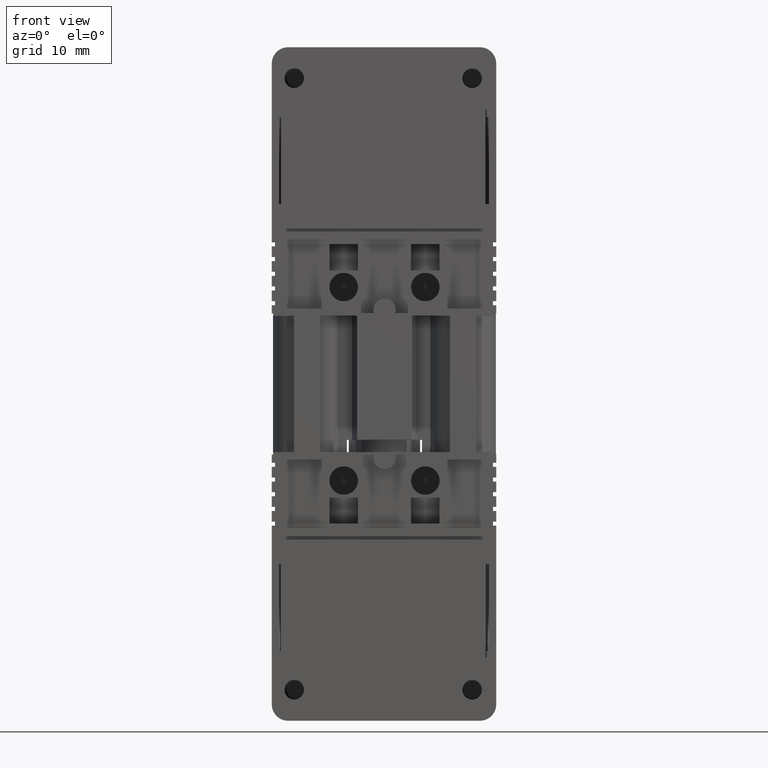
[diagram: clean part render]
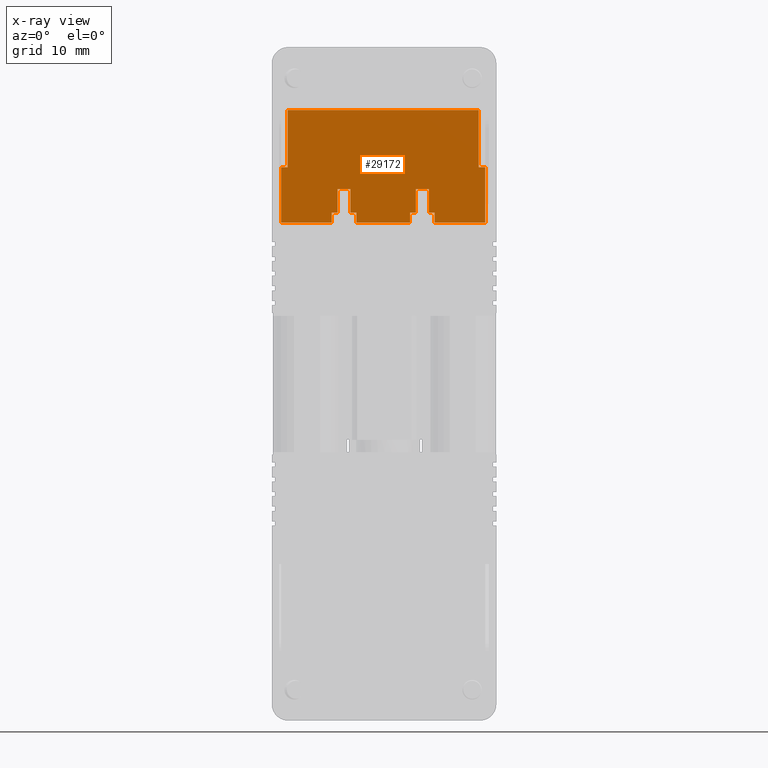
[diagram: x-ray — body ghosted, one internal face saturated and labeled with its STEP entity id]
A machine part, front view, then the same camera in x-ray: the body is ghosted and one INTERNAL B-rep face — a face not visible from any outside direction — is saturated and labeled: STEP entity #29172.
In plain terms, the highlighted planar face has unit normal (0, -1, 0).
Its self-contained STEP definition (entity closure, byte-faithful):
#343 = LINE ( 'NONE', #365, #14206 ) ;
#364 = LINE ( 'NONE', #398, #14260 ) ;
#365 = CARTESIAN_POINT ( 'NONE',  ( 27.15000000000096100, -8.699999999999999300, 42.49999999999995700 ) ) ;
#368 = DIRECTION ( 'NONE',  ( -1.000000000000000000, -0.0000000000000000000, -0.0000000000000000000 ) ) ;
#382 = LINE ( 'NONE', #394, #14238 ) ;
#386 = DIRECTION ( 'NONE',  ( 0.0000000000000000000, -0.0000000000000000000, -1.000000000000000000 ) ) ;
#392 = CARTESIAN_POINT ( 'NONE',  ( 27.15000000000096100, -8.699999999999999300, 28.73184119384915600 ) ) ;
#393 = DIRECTION ( 'NONE',  ( 1.000000000000000000, 0.0000000000000000000, 0.0000000000000000000 ) ) ;
#394 = CARTESIAN_POINT ( 'NONE',  ( 19.24500000000076800, -8.699999999999999300, 28.00000000000005300 ) ) ;
#398 = CARTESIAN_POINT ( 'NONE',  ( 27.15000000000096100, -8.699999999999999300, 32.80873420447297000 ) ) ;
#400 = LINE ( 'NONE', #410, #14301 ) ;
#410 = CARTESIAN_POINT ( 'NONE',  ( 25.35000000000049900, -8.699999999999999300, 28.00000000000005300 ) ) ;
#412 = LINE ( 'NONE', #426, #14306 ) ;
#413 = DIRECTION ( 'NONE',  ( 1.000000000000000000, 0.0000000000000000000, 0.0000000000000000000 ) ) ;
#414 = DIRECTION ( 'NONE',  ( 0.0000000000000000000, -0.0000000000000000000, -1.000000000000000000 ) ) ;
#425 = DIRECTION ( 'NONE',  ( -0.0000000000000000000, 0.0000000000000000000, 1.000000000000000000 ) ) ;
#426 = CARTESIAN_POINT ( 'NONE',  ( 19.94464615384706000, -8.699999999999999300, 28.00000000000005300 ) ) ;
#429 = LINE ( 'NONE', #392, #14280 ) ;
#450 = CARTESIAN_POINT ( 'NONE',  ( 27.15000000000096100, -8.699999999999999300, 32.80873420447235800 ) ) ;
#452 = LINE ( 'NONE', #496, #14298 ) ;
#453 = LINE ( 'NONE', #506, #14268 ) ;
#463 = LINE ( 'NONE', #450, #14271 ) ;
#467 = DIRECTION ( 'NONE',  ( 1.000000000000000000, 0.0000000000000000000, 0.0000000000000000000 ) ) ;
#480 = DIRECTION ( 'NONE',  ( 1.000000000000000000, 0.0000000000000000000, 0.0000000000000000000 ) ) ;
#496 = CARTESIAN_POINT ( 'NONE',  ( 27.15000000000096100, -8.699999999999999300, 29.95999999999955700 ) ) ;
#506 = CARTESIAN_POINT ( 'NONE',  ( 27.15000000000096100, -8.699999999999999300, 28.73184119384929100 ) ) ;
#522 = DIRECTION ( 'NONE',  ( 1.000000000000000000, 0.0000000000000000000, 0.0000000000000000000 ) ) ;
#529 = CARTESIAN_POINT ( 'NONE',  ( 10.34464615384715300, -8.699999999999999300, 28.00000000000005300 ) ) ;
#542 = DIRECTION ( 'NONE',  ( 0.0000000000000000000, -0.0000000000000000000, -1.000000000000000000 ) ) ;
#547 = DIRECTION ( 'NONE',  ( 1.000000000000000000, 0.0000000000000000000, 0.0000000000000000000 ) ) ;
#561 = LINE ( 'NONE', #562, #14325 ) ;
#562 = CARTESIAN_POINT ( 'NONE',  ( 27.15000000000096100, -8.699999999999999300, 28.73184119384868000 ) ) ;
#566 = LINE ( 'NONE', #529, #14318 ) ;
#4582 = EDGE_CURVE ( 'NONE', #26839, #26735, #23285, .T. ) ;
#4637 = EDGE_CURVE ( 'NONE', #26839, #26730, #23898, .T. ) ;
#4641 = EDGE_CURVE ( 'NONE', #26724, #26799, #23881, .T. ) ;
#5533 = EDGE_CURVE ( 'NONE', #26740, #26777, #343, .T. ) ;
#5537 = EDGE_CURVE ( 'NONE', #26754, #26707, #382, .T. ) ;
#5538 = EDGE_CURVE ( 'NONE', #26755, #26754, #364, .T. ) ;
#5540 = EDGE_CURVE ( 'NONE', #26730, #26740, #400, .T. ) ;
#5543 = EDGE_CURVE ( 'NONE', #26724, #26746, #429, .T. ) ;
#5544 = EDGE_CURVE ( 'NONE', #26758, #26716, #412, .T. ) ;
#5561 = EDGE_CURVE ( 'NONE', #26772, #26774, #463, .T. ) ;
#5569 = EDGE_CURVE ( 'NONE', #26707, #26758, #452, .T. ) ;
#5576 = EDGE_CURVE ( 'NONE', #26716, #26735, #453, .T. ) ;
#5591 = EDGE_CURVE ( 'NONE', #26717, #26731, #566, .T. ) ;
#5594 = EDGE_CURVE ( 'NONE', #26731, #26728, #561, .T. ) ;
#5947 = EDGE_LOOP ( 'NONE', ( #22417, #22433, #22412, #22438, #22436, #22447, #22420, #22423, #22427, #22448, #22418, #22422, #22404, #22477, #22485, #22467, #22441, #22442, #22474, #22497, #22483, #22450, #22481, #22402 ) ) ;
#8928 = VECTOR ( 'NONE', #23332, 1000.000000000000000 ) ;
#8960 = VECTOR ( 'NONE', #23922, 1000.000000000000000 ) ;
#8997 = VECTOR ( 'NONE', #23934, 1000.000000000000000 ) ;
#10889 = CARTESIAN_POINT ( 'NONE',  ( 19.24500000000079300, -8.699999999999999300, 32.80873420447304100 ) ) ;
#10891 = CARTESIAN_POINT ( 'NONE',  ( 8.055000000000822200, -8.699999999999999300, 32.80873420447237300 ) ) ;
#10893 = CARTESIAN_POINT ( 'NONE',  ( 10.34464615384716200, -8.699999999999999300, 29.95999999999897400 ) ) ;
#10902 = CARTESIAN_POINT ( 'NONE',  ( 26.15000000000091500, -8.699999999999992200, 28.73184119384956500 ) ) ;
#10905 = CARTESIAN_POINT ( 'NONE',  ( 16.95535384615479300, -8.700000000000018800, 28.73184119384895800 ) ) ;
#10908 = CARTESIAN_POINT ( 'NONE',  ( 7.355353846154831600, -8.699999999999999300, 28.73184119384907100 ) ) ;
#10920 = CARTESIAN_POINT ( 'NONE',  ( 9.645000000000790100, -8.699999999999999300, 32.80873420447242900 ) ) ;
#10924 = CARTESIAN_POINT ( 'NONE',  ( 25.35000000000044600, -8.699999999999999300, 35.49999999999998600 ) ) ;
#10927 = CARTESIAN_POINT ( 'NONE',  ( 10.34464615384721000, -8.700000000000004600, 28.73184119384868000 ) ) ;
#10929 = CARTESIAN_POINT ( 'NONE',  ( 25.35000000000044600, -8.699999999999999300, 42.49999999999995000 ) ) ;
#10933 = CARTESIAN_POINT ( 'NONE',  ( 19.94464615384712000, -8.699999999999995700, 28.73184119384929100 ) ) ;
#10939 = CARTESIAN_POINT ( 'NONE',  ( 17.65500000000082900, -8.699999999999999300, 32.80873420447298400 ) ) ;
#10940 = CARTESIAN_POINT ( 'NONE',  ( 19.94464615384707100, -8.699999999999999300, 29.95999999999958900 ) ) ;
#10946 = CARTESIAN_POINT ( 'NONE',  ( 9.645000000000893100, -8.699999999999999300, 29.95999999999894600 ) ) ;
#10948 = CARTESIAN_POINT ( 'NONE',  ( 1.150000000000907000, -8.699999999999999300, 28.73184119384858400 ) ) ;
#10949 = CARTESIAN_POINT ( 'NONE',  ( 8.055000000000923400, -8.700000000000018800, 29.95999999999882500 ) ) ;
#10961 = CARTESIAN_POINT ( 'NONE',  ( 1.150000000000473800, -8.699999999999999300, 35.49999999999843000 ) ) ;
#10965 = CARTESIAN_POINT ( 'NONE',  ( 7.355353846154777400, -8.700000000000009900, 29.95999999999879300 ) ) ;
#10973 = CARTESIAN_POINT ( 'NONE',  ( 1.950000000000173200, -8.699999999999999300, 35.49999999999845100 ) ) ;
#10984 = CARTESIAN_POINT ( 'NONE',  ( 16.95535384615473600, -8.700000000000011700, 29.95999999999940400 ) ) ;
#10985 = CARTESIAN_POINT ( 'NONE',  ( 1.950000000000024600, -8.699999999999999300, 42.49999999999978700 ) ) ;
#10996 = CARTESIAN_POINT ( 'NONE',  ( 17.65500000000092800, -8.699999999999985100, 29.95999999999944000 ) ) ;
#11006 = CARTESIAN_POINT ( 'NONE',  ( 26.15000000000064500, -8.699999999999999300, 35.50000000000000700 ) ) ;
#12078 = CARTESIAN_POINT ( 'NONE',  ( 19.24500000000089300, -8.699999999999999300, 29.95999999999955700 ) ) ;
#13320 = AXIS2_PLACEMENT_3D ( 'NONE', #16019, #15990, #15994 ) ;
#14206 = VECTOR ( 'NONE', #368, 1000.000000000000000 ) ;
#14238 = VECTOR ( 'NONE', #386, 1000.000000000000000 ) ;
#14260 = VECTOR ( 'NONE', #413, 1000.000000000000000 ) ;
#14268 = VECTOR ( 'NONE', #522, 1000.000000000000000 ) ;
#14271 = VECTOR ( 'NONE', #467, 1000.000000000000000 ) ;
#14280 = VECTOR ( 'NONE', #393, 1000.000000000000000 ) ;
#14298 = VECTOR ( 'NONE', #480, 1000.000000000000000 ) ;
#14301 = VECTOR ( 'NONE', #425, 1000.000000000000000 ) ;
#14306 = VECTOR ( 'NONE', #414, 1000.000000000000000 ) ;
#14318 = VECTOR ( 'NONE', #542, 1000.000000000000000 ) ;
#14325 = VECTOR ( 'NONE', #547, 1000.000000000000000 ) ;
#14765 = VECTOR ( 'NONE', #21385, 1000.000000000000000 ) ;
#14773 = VECTOR ( 'NONE', #21557, 1000.000000000000000 ) ;
#14780 = VECTOR ( 'NONE', #21486, 1000.000000000000000 ) ;
#14783 = VECTOR ( 'NONE', #21524, 1000.000000000000000 ) ;
#14793 = VECTOR ( 'NONE', #21480, 1000.000000000000000 ) ;
#14820 = VECTOR ( 'NONE', #21452, 1000.000000000000000 ) ;
#14821 = VECTOR ( 'NONE', #21394, 1000.000000000000000 ) ;
#14823 = VECTOR ( 'NONE', #21445, 1000.000000000000000 ) ;
#14826 = VECTOR ( 'NONE', #21534, 1000.000000000000000 ) ;
#14836 = VECTOR ( 'NONE', #21428, 1000.000000000000000 ) ;
#15977 = PLANE ( 'NONE',  #13320 ) ;
#15990 = DIRECTION ( 'NONE',  ( 0.0000000000000000000, -1.000000000000000000, 0.0000000000000000000 ) ) ;
#15994 = DIRECTION ( 'NONE',  ( 0.0000000000000000000, -0.0000000000000000000, -1.000000000000000000 ) ) ;
#15998 = FACE_OUTER_BOUND ( 'NONE', #5947, .T. ) ;
#16019 = CARTESIAN_POINT ( 'NONE',  ( 27.15000000000096100, -8.699999999999999300, 28.00000000000005300 ) ) ;
#21359 = CARTESIAN_POINT ( 'NONE',  ( 27.15000000000096100, -8.699999999999999300, 29.95999999999894600 ) ) ;
#21372 = LINE ( 'NONE', #21359, #14765 ) ;
#21385 = DIRECTION ( 'NONE',  ( 1.000000000000000000, 0.0000000000000000000, 0.0000000000000000000 ) ) ;
#21390 = LINE ( 'NONE', #21391, #14821 ) ;
#21391 = CARTESIAN_POINT ( 'NONE',  ( 27.15000000000096100, -8.699999999999999300, 29.95999999999879300 ) ) ;
#21394 = DIRECTION ( 'NONE',  ( 1.000000000000000000, 0.0000000000000000000, 0.0000000000000000000 ) ) ;
#21413 = LINE ( 'NONE', #21441, #14780 ) ;
#21416 = CARTESIAN_POINT ( 'NONE',  ( 8.055000000000946500, -8.699999999999999300, 28.00000000000005300 ) ) ;
#21428 = DIRECTION ( 'NONE',  ( -0.0000000000000000000, 0.0000000000000000000, 1.000000000000000000 ) ) ;
#21429 = CARTESIAN_POINT ( 'NONE',  ( 1.950000000000024600, -8.699999999999999300, 28.00000000000005300 ) ) ;
#21441 = CARTESIAN_POINT ( 'NONE',  ( 16.95535384615479700, -8.699999999999999300, 28.00000000000005300 ) ) ;
#21444 = LINE ( 'NONE', #21429, #14823 ) ;
#21445 = DIRECTION ( 'NONE',  ( 0.0000000000000000000, -0.0000000000000000000, -1.000000000000000000 ) ) ;
#21447 = LINE ( 'NONE', #21416, #14836 ) ;
#21452 = DIRECTION ( 'NONE',  ( 1.000000000000000000, 0.0000000000000000000, 0.0000000000000000000 ) ) ;
#21453 = CARTESIAN_POINT ( 'NONE',  ( 17.65500000000095000, -8.699999999999999300, 28.00000000000005300 ) ) ;
#21454 = CARTESIAN_POINT ( 'NONE',  ( 27.15000000000096100, -8.699999999999999300, 29.95999999999940400 ) ) ;
#21461 = LINE ( 'NONE', #21454, #14820 ) ;
#21480 = DIRECTION ( 'NONE',  ( -0.0000000000000000000, 0.0000000000000000000, 1.000000000000000000 ) ) ;
#21483 = LINE ( 'NONE', #21453, #14793 ) ;
#21486 = DIRECTION ( 'NONE',  ( -0.0000000000000000000, 0.0000000000000000000, 1.000000000000000000 ) ) ;
#21509 = LINE ( 'NONE', #21528, #14783 ) ;
#21514 = CARTESIAN_POINT ( 'NONE',  ( 7.355353846154832500, -8.699999999999999300, 28.00000000000005300 ) ) ;
#21519 = CARTESIAN_POINT ( 'NONE',  ( 27.15000000000096100, -8.699999999999999300, 35.49999999999845100 ) ) ;
#21523 = LINE ( 'NONE', #21519, #14773 ) ;
#21524 = DIRECTION ( 'NONE',  ( 0.0000000000000000000, -0.0000000000000000000, -1.000000000000000000 ) ) ;
#21528 = CARTESIAN_POINT ( 'NONE',  ( 9.645000000000767000, -8.699999999999999300, 28.00000000000005300 ) ) ;
#21534 = DIRECTION ( 'NONE',  ( -0.0000000000000000000, 0.0000000000000000000, 1.000000000000000000 ) ) ;
#21539 = LINE ( 'NONE', #21514, #14826 ) ;
#21557 = DIRECTION ( 'NONE',  ( -1.000000000000000000, -0.0000000000000000000, -0.0000000000000000000 ) ) ;
#22402 = ORIENTED_EDGE ( 'NONE', *, *, #5576, .F. ) ;
#22404 = ORIENTED_EDGE ( 'NONE', *, *, #22674, .F. ) ;
#22412 = ORIENTED_EDGE ( 'NONE', *, *, #5537, .F. ) ;
#22417 = ORIENTED_EDGE ( 'NONE', *, *, #5544, .F. ) ;
#22418 = ORIENTED_EDGE ( 'NONE', *, *, #22705, .F. ) ;
#22420 = ORIENTED_EDGE ( 'NONE', *, *, #22682, .F. ) ;
#22422 = ORIENTED_EDGE ( 'NONE', *, *, #5561, .F. ) ;
#22423 = ORIENTED_EDGE ( 'NONE', *, *, #5594, .F. ) ;
#22427 = ORIENTED_EDGE ( 'NONE', *, *, #5591, .F. ) ;
#22433 = ORIENTED_EDGE ( 'NONE', *, *, #5569, .F. ) ;
#22436 = ORIENTED_EDGE ( 'NONE', *, *, #22692, .F. ) ;
#22438 = ORIENTED_EDGE ( 'NONE', *, *, #5538, .F. ) ;
#22441 = ORIENTED_EDGE ( 'NONE', *, *, #4641, .T. ) ;
#22442 = ORIENTED_EDGE ( 'NONE', *, *, #22712, .F. ) ;
#22447 = ORIENTED_EDGE ( 'NONE', *, *, #22688, .F. ) ;
#22448 = ORIENTED_EDGE ( 'NONE', *, *, #22662, .F. ) ;
#22450 = ORIENTED_EDGE ( 'NONE', *, *, #4637, .F. ) ;
#22467 = ORIENTED_EDGE ( 'NONE', *, *, #5543, .F. ) ;
#22474 = ORIENTED_EDGE ( 'NONE', *, *, #22671, .F. ) ;
#22477 = ORIENTED_EDGE ( 'NONE', *, *, #22665, .F. ) ;
#22481 = ORIENTED_EDGE ( 'NONE', *, *, #4582, .T. ) ;
#22483 = ORIENTED_EDGE ( 'NONE', *, *, #5540, .F. ) ;
#22485 = ORIENTED_EDGE ( 'NONE', *, *, #22707, .F. ) ;
#22497 = ORIENTED_EDGE ( 'NONE', *, *, #5533, .F. ) ;
#22662 = EDGE_CURVE ( 'NONE', #26765, #26717, #21372, .T. ) ;
#22665 = EDGE_CURVE ( 'NONE', #26781, #26767, #21390, .T. ) ;
#22671 = EDGE_CURVE ( 'NONE', #26777, #26827, #21444, .T. ) ;
#22674 = EDGE_CURVE ( 'NONE', #26767, #26772, #21447, .T. ) ;
#22682 = EDGE_CURVE ( 'NONE', #26728, #26823, #21413, .T. ) ;
#22688 = EDGE_CURVE ( 'NONE', #26823, #26797, #21461, .T. ) ;
#22692 = EDGE_CURVE ( 'NONE', #26797, #26755, #21483, .T. ) ;
#22705 = EDGE_CURVE ( 'NONE', #26774, #26765, #21509, .T. ) ;
#22707 = EDGE_CURVE ( 'NONE', #26746, #26781, #21539, .T. ) ;
#22712 = EDGE_CURVE ( 'NONE', #26827, #26799, #21523, .T. ) ;
#23285 = LINE ( 'NONE', #23308, #8928 ) ;
#23308 = CARTESIAN_POINT ( 'NONE',  ( 26.15000000000096100, -8.699999999999999300, 27.99999999999999600 ) ) ;
#23332 = DIRECTION ( 'NONE',  ( 6.384643771527546000E-014, -0.0000000000000000000, -1.000000000000000000 ) ) ;
#23881 = LINE ( 'NONE', #23884, #8960 ) ;
#23884 = CARTESIAN_POINT ( 'NONE',  ( 1.150000000000026100, -8.699999999999999300, 42.49999999999840100 ) ) ;
#23898 = LINE ( 'NONE', #23902, #8997 ) ;
#23902 = CARTESIAN_POINT ( 'NONE',  ( 27.15000000000096100, -8.699999999999999300, 35.50000000000000700 ) ) ;
#23922 = DIRECTION ( 'NONE',  ( -6.396607381706698500E-014, -0.0000000000000000000, 1.000000000000000000 ) ) ;
#23934 = DIRECTION ( 'NONE',  ( -1.000000000000000000, -0.0000000000000000000, -0.0000000000000000000 ) ) ;
#26707 = VERTEX_POINT ( 'NONE', #12078 ) ;
#26716 = VERTEX_POINT ( 'NONE', #10933 ) ;
#26717 = VERTEX_POINT ( 'NONE', #10893 ) ;
#26724 = VERTEX_POINT ( 'NONE', #10948 ) ;
#26728 = VERTEX_POINT ( 'NONE', #10905 ) ;
#26730 = VERTEX_POINT ( 'NONE', #10924 ) ;
#26731 = VERTEX_POINT ( 'NONE', #10927 ) ;
#26735 = VERTEX_POINT ( 'NONE', #10902 ) ;
#26740 = VERTEX_POINT ( 'NONE', #10929 ) ;
#26746 = VERTEX_POINT ( 'NONE', #10908 ) ;
#26754 = VERTEX_POINT ( 'NONE', #10889 ) ;
#26755 = VERTEX_POINT ( 'NONE', #10939 ) ;
#26758 = VERTEX_POINT ( 'NONE', #10940 ) ;
#26765 = VERTEX_POINT ( 'NONE', #10946 ) ;
#26767 = VERTEX_POINT ( 'NONE', #10949 ) ;
#26772 = VERTEX_POINT ( 'NONE', #10891 ) ;
#26774 = VERTEX_POINT ( 'NONE', #10920 ) ;
#26777 = VERTEX_POINT ( 'NONE', #10985 ) ;
#26781 = VERTEX_POINT ( 'NONE', #10965 ) ;
#26797 = VERTEX_POINT ( 'NONE', #10996 ) ;
#26799 = VERTEX_POINT ( 'NONE', #10961 ) ;
#26823 = VERTEX_POINT ( 'NONE', #10984 ) ;
#26827 = VERTEX_POINT ( 'NONE', #10973 ) ;
#26839 = VERTEX_POINT ( 'NONE', #11006 ) ;
#29172 = ADVANCED_FACE ( 'NONE', ( #15998 ), #15977, .F. ) ;